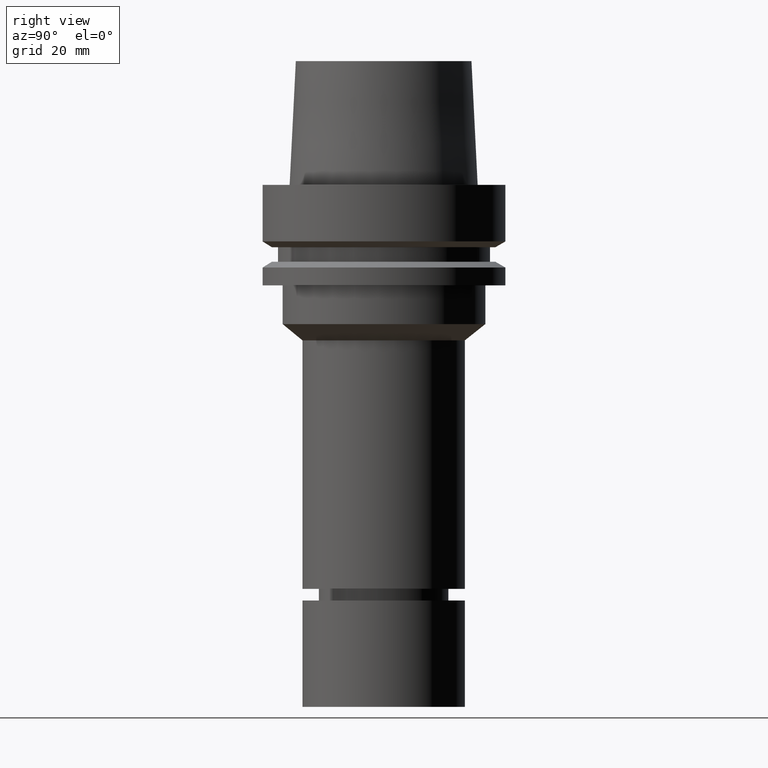
[diagram: clean part render]
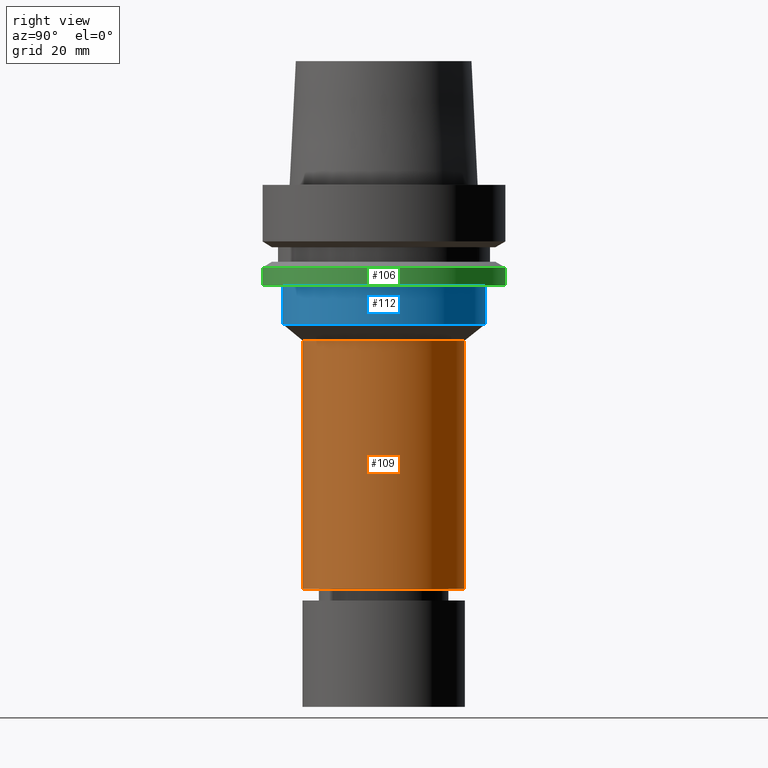
[diagram: same view with three faces highlighted in distinct colors, each labeled with its STEP entity id]
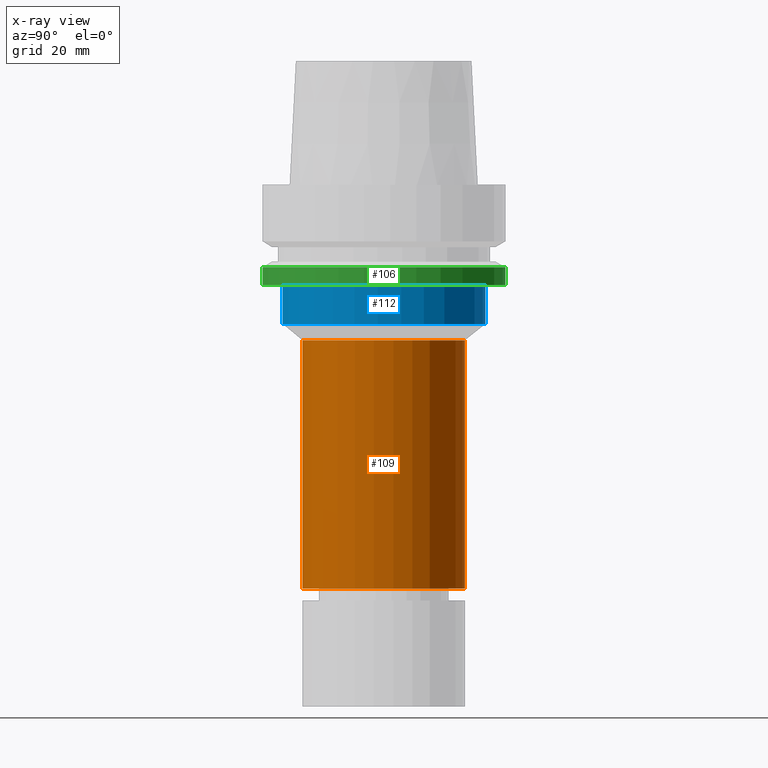
[diagram: x-ray of the same camera — body ghosted, the three highlighted faces saturated]
A machine part, right view with three faces highlighted in distinct colors.
The next image is the same camera in x-ray (body ghosted, the three faces saturated) — at least one of them is partly hidden behind the body in this view.
Their STEP definitions:

[orange] entity #109 — the highlighted cylindrical surface (bore or boss wall) has radius 21 mm, axis along (-0, -0, 1).
#109=ADVANCED_FACE('Unnamed[1]',(#260,#261),#262,.T.);
#135=EDGE_CURVE('Unnamed[1]',#303,#303,#304,.T.);
#188=EDGE_CURVE('Unnamed[1]',#383,#383,#384,.T.);
#260=FACE_BOUND('',#462,.T.);
#261=FACE_BOUND('',#463,.T.);
#262=CYLINDRICAL_SURFACE('',#464,21.0);
#303=VERTEX_POINT('',#515);
#304=CIRCLE('',#516,21.0);
#383=VERTEX_POINT('',#615);
#384=CIRCLE('',#616,21.0);
#462=EDGE_LOOP('',(#679));
#463=EDGE_LOOP('',(#680));
#464=AXIS2_PLACEMENT_3D('',#681,#682,#683);
#515=CARTESIAN_POINT('',(6.39877952554491E-015,21.0,-104.5));
#516=AXIS2_PLACEMENT_3D('',#729,#730,#731);
#615=CARTESIAN_POINT('',(2.46243754685596E-015,21.0,-40.21465697));
#616=AXIS2_PLACEMENT_3D('',#817,#818,#819);
#679=ORIENTED_EDGE('',*,*,#188,.F.);
#680=ORIENTED_EDGE('',*,*,#135,.T.);
#681=CARTESIAN_POINT('',(4.43060853620044E-015,8.86121707240088E-015,-72.357328485));
#682=DIRECTION('',(-6.12323399573677E-017,-1.22464679914735E-016,1.0));
#683=DIRECTION('',(-1.23259516440783E-032,1.0,1.22464679914735E-016));
#729=CARTESIAN_POINT('',(6.39877952554492E-015,1.27975590510898E-014,-104.5));
#730=DIRECTION('',(-6.12323399573677E-017,-1.22464679914735E-016,1.0));
#731=DIRECTION('',(-1.23259516440783E-032,1.0,1.22464679914735E-016));
#817=CARTESIAN_POINT('',(2.46243754685596E-015,4.92487509371193E-015,-40.21465697));
#818=DIRECTION('',(-6.12323399573677E-017,-1.22464679914735E-016,1.0));
#819=DIRECTION('',(-1.23259516440783E-032,1.0,1.22464679914735E-016));

[blue] entity #112 — the highlighted cylindrical surface (bore or boss wall) has radius 26.3 mm, axis along (-0, -0, 1).
#112=ADVANCED_FACE('Unnamed[1]',(#265,#266),#267,.T.);
#140=EDGE_CURVE('Unnamed[1]',#311,#311,#312,.T.);
#190=EDGE_CURVE('Unnamed[1]',#386,#386,#387,.T.);
#265=FACE_BOUND('',#468,.T.);
#266=FACE_BOUND('',#469,.T.);
#267=CYLINDRICAL_SURFACE('',#470,26.3);
#311=VERTEX_POINT('',#525);
#312=CIRCLE('',#526,26.3);
#386=VERTEX_POINT('',#619);
#387=CIRCLE('',#620,26.3);
#468=EDGE_LOOP('',(#685));
#469=EDGE_LOOP('',(#686));
#470=AXIS2_PLACEMENT_3D('',#687,#688,#689);
#525=CARTESIAN_POINT('',(2.20436423812685E-015,26.3,-35.9999999944737));
#526=AXIS2_PLACEMENT_3D('',#738,#739,#740);
#619=CARTESIAN_POINT('',(1.59204083889154E-015,26.3,-25.9999999999997));
#620=AXIS2_PLACEMENT_3D('',#820,#821,#822);
#685=ORIENTED_EDGE('',*,*,#190,.F.);
#686=ORIENTED_EDGE('',*,*,#140,.T.);
#687=CARTESIAN_POINT('',(1.89820253850919E-015,3.79640507701839E-015,-30.9999999972367));
#688=DIRECTION('',(-6.12323399573677E-017,-1.22464679914735E-016,1.0));
#689=DIRECTION('',(-1.23259516440783E-032,1.0,1.22464679914735E-016));
#738=CARTESIAN_POINT('',(2.20436423812685E-015,4.40872847625369E-015,-35.9999999944737));
#739=DIRECTION('',(-6.12323399573677E-017,-1.22464679914735E-016,1.0));
#740=DIRECTION('',(-1.23259516440783E-032,1.0,1.22464679914735E-016));
#820=CARTESIAN_POINT('',(1.59204083889154E-015,3.18408167778308E-015,-25.9999999999997));
#821=DIRECTION('',(-6.12323399573677E-017,-1.22464679914735E-016,1.0));
#822=DIRECTION('',(-1.23259516440783E-032,1.0,1.22464679914735E-016));

[green] entity #106 — the highlighted cylindrical surface (bore or boss wall) has radius 31.5 mm, axis along (-0, -0, 1).
#95=EDGE_CURVE('Unnamed[1]',#238,#238,#239,.T.);
#106=ADVANCED_FACE('Unnamed[1]',(#255,#256),#257,.T.);
#192=EDGE_CURVE('Unnamed[1]',#389,#389,#390,.T.);
#238=VERTEX_POINT('',#435);
#239=CIRCLE('',#436,31.5);
#255=FACE_BOUND('',#456,.T.);
#256=FACE_BOUND('',#457,.T.);
#257=CYLINDRICAL_SURFACE('',#458,31.4999999999999);
#389=VERTEX_POINT('',#623);
#390=CIRCLE('',#624,31.4999999999998);
#435=CARTESIAN_POINT('',(1.30899429078397E-015,31.5,-21.3774990747592));
#436=AXIS2_PLACEMENT_3D('',#654,#655,#656);
#456=EDGE_LOOP('',(#673));
#457=EDGE_LOOP('',(#674));
#458=AXIS2_PLACEMENT_3D('',#675,#676,#677);
#623=CARTESIAN_POINT('',(1.59204083889155E-015,31.4999999999998,-25.9999999999999));
#624=AXIS2_PLACEMENT_3D('',#823,#824,#825);
#654=CARTESIAN_POINT('',(1.30899429078397E-015,2.61798858156794E-015,-21.3774990747592));
#655=DIRECTION('',(-6.12323399573677E-017,-1.22464679914735E-016,1.0));
#656=DIRECTION('',(-1.23259516440783E-032,1.0,1.22464679914735E-016));
#673=ORIENTED_EDGE('',*,*,#95,.F.);
#674=ORIENTED_EDGE('',*,*,#192,.T.);
#675=CARTESIAN_POINT('',(1.45051756483776E-015,2.90103512967552E-015,-23.6887495373796));
#676=DIRECTION('',(-6.12323399573677E-017,-1.22464679914735E-016,1.0));
#677=DIRECTION('',(-1.23259516440783E-032,1.0,1.22464679914735E-016));
#823=CARTESIAN_POINT('',(1.59204083889155E-015,3.1840816777831E-015,-25.9999999999999));
#824=DIRECTION('',(-6.12323399573676E-017,-1.22464679914735E-016,1.0));
#825=DIRECTION('',(-1.23259516440783E-032,1.0,1.22464679914735E-016));